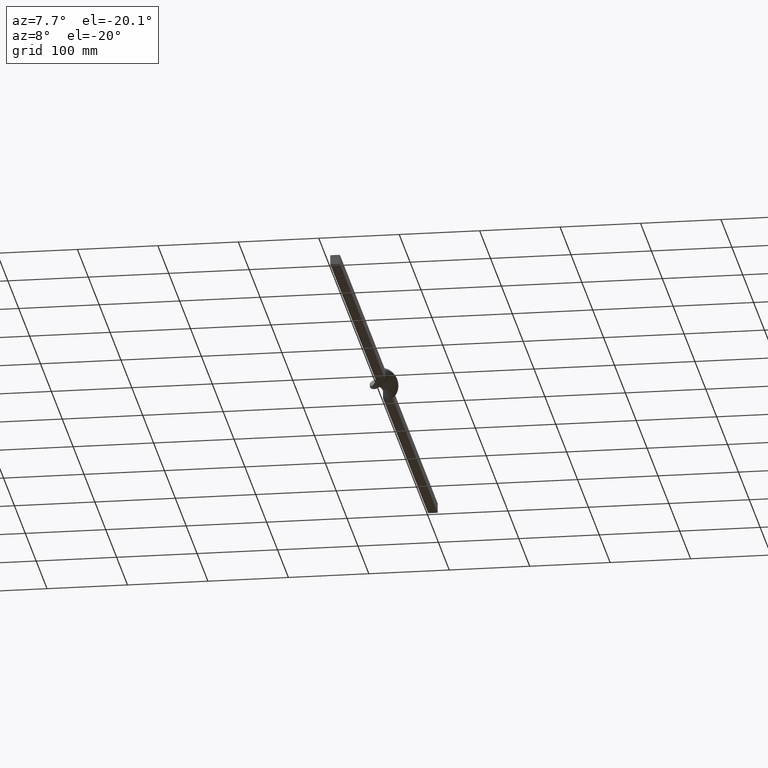
[diagram: clean part render]
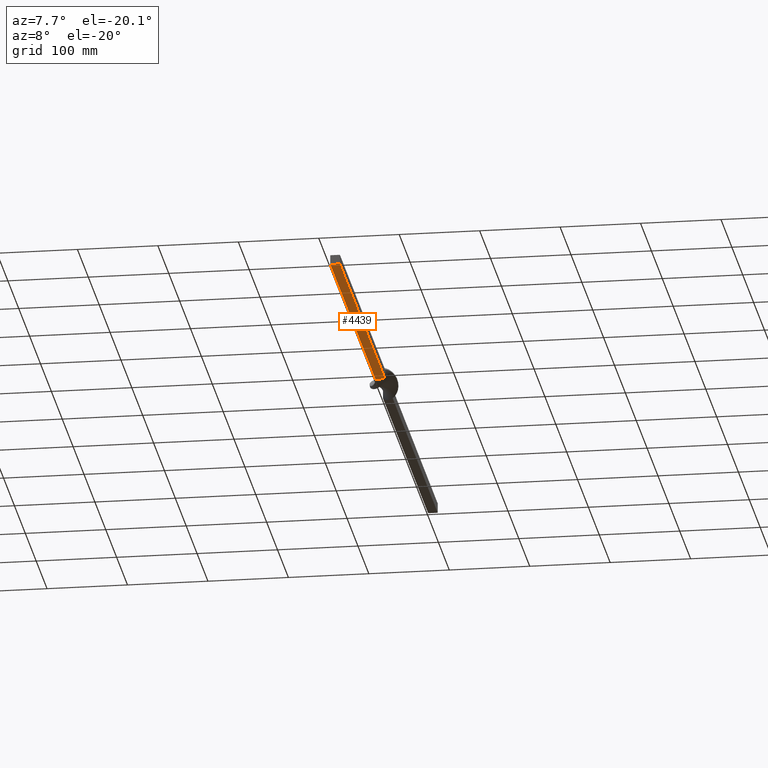
[diagram: same view with one face highlighted and labeled with its STEP entity id]
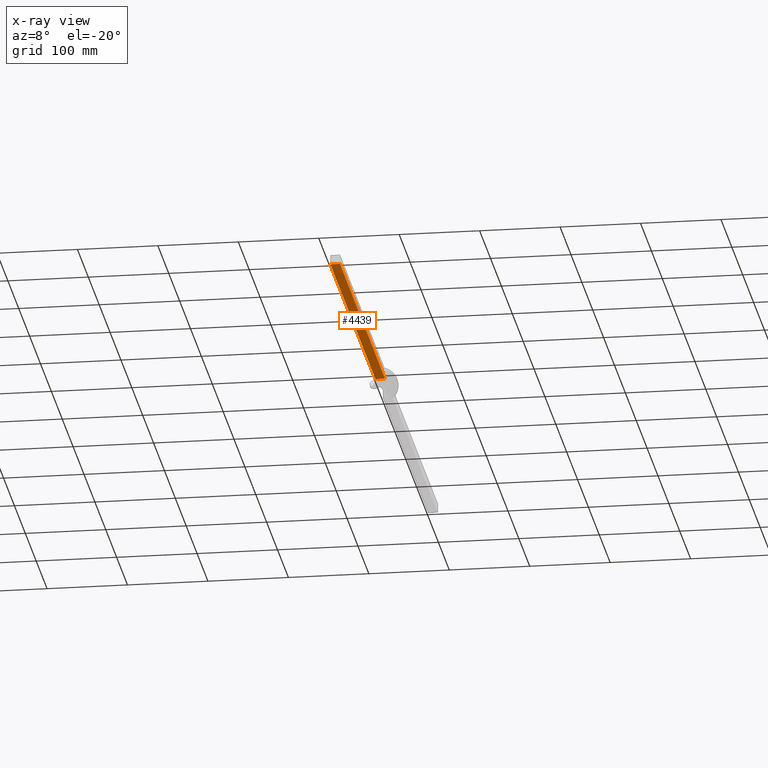
[diagram: x-ray of the same camera — body ghosted, the highlighted face saturated]
A machine part, auxiliary view. The second image highlights one B-rep face of the part: STEP entity #4439.
The next image is the same camera in x-ray: the body ghosted, the highlighted face saturated — about 0% of this face is hidden behind the body in this view.
In plain terms, the highlighted planar face has unit normal (-0, 0, -1).
Its self-contained STEP definition (entity closure, byte-faithful):
#604 = B_SPLINE_CURVE_WITH_KNOTS ( 'NONE', 3,
 ( #10279, #6742, #1488, #1528 ),
 .UNSPECIFIED., .F., .F.,
 ( 4, 4 ),
 ( 0.4669705627484773136, 0.8819705627484772936 ),
 .UNSPECIFIED. ) ;
#612 = CARTESIAN_POINT ( 'NONE',  ( 5.999985710689379914, -34.99999999999986500, -6.000014289276608181 ) ) ;
#664 = CARTESIAN_POINT ( 'NONE',  ( -6.000014289276599300, -311.6666666666670835, -5.999985710689367480 ) ) ;
#1010 = EDGE_CURVE ( 'NONE', #10582, #8151, #604, .T. ) ;
#1028 = CARTESIAN_POINT ( 'NONE',  ( 5.999985710689379914, -450.0000000000000000, -6.000014289276617951 ) ) ;
#1161 = ORIENTED_EDGE ( 'NONE', *, *, #1010, .F. ) ;
#1477 = CARTESIAN_POINT ( 'NONE',  ( 1.999985710700726171, -450.0000000000000568, -6.000004763080873715 ) ) ;
#1488 = CARTESIAN_POINT ( 'NONE',  ( 5.999985710689371032, -173.3333333333331439, -6.000014289276607293 ) ) ;
#1528 = CARTESIAN_POINT ( 'NONE',  ( 5.999985708195915812, -34.99999999533305584, -6.000014295125451369 ) ) ;
#2073 = EDGE_CURVE ( 'NONE', #5694, #2900, #7645, .T. ) ;
#2175 = VECTOR ( 'NONE', #11117, 1000.000000000000227 ) ;
#2253 = CARTESIAN_POINT ( 'NONE',  ( -6.000014289276601964, -173.3333333333331439, -5.999985710689366591 ) ) ;
#2391 = ORIENTED_EDGE ( 'NONE', *, *, #2073, .T. ) ;
#2620 = EDGE_LOOP ( 'NONE', ( #6384, #2391, #9174, #1161 ) ) ;
#2900 = VERTEX_POINT ( 'NONE', #7363 ) ;
#3747 = B_SPLINE_CURVE_WITH_KNOTS ( 'NONE', 3,
 ( #9216, #1477, #7565, #7489 ),
 .UNSPECIFIED., .F., .F.,
 ( 4, 4 ),
 ( 0.000000000000000000, 0.01200000000000000025 ),
 .UNSPECIFIED. ) ;
#3807 = FACE_OUTER_BOUND ( 'NONE', #2620, .T. ) ;
#4040 = CARTESIAN_POINT ( 'NONE',  ( -6.000014289276590418, -450.0000000000000000, -5.999985710689371921 ) ) ;
#4439 = ADVANCED_FACE ( 'NONE', ( #3807 ), #10624, .T. ) ;
#4596 = EDGE_CURVE ( 'NONE', #8151, #2900, #4788, .T. ) ;
#4788 = LINE ( 'NONE', #612, #2175 ) ;
#5041 = CARTESIAN_POINT ( 'NONE',  ( -6.000014289276590418, -450.0000000000000000, -5.999985710689371921 ) ) ;
#5049 = CARTESIAN_POINT ( 'NONE',  ( 5.999985708195915812, -34.99999999533305584, -6.000014295125451369 ) ) ;
#5694 = VERTEX_POINT ( 'NONE', #4040 ) ;
#5774 = EDGE_CURVE ( 'NONE', #10582, #5694, #3747, .T. ) ;
#6384 = ORIENTED_EDGE ( 'NONE', *, *, #5774, .T. ) ;
#6742 = CARTESIAN_POINT ( 'NONE',  ( 5.999985710689376361, -311.6666666666670835, -6.000014289276620616 ) ) ;
#6923 = AXIS2_PLACEMENT_3D ( 'NONE', #1028, #10660, #10584 ) ;
#7363 = CARTESIAN_POINT ( 'NONE',  ( -6.000014289399159040, -34.99999999541523721, -5.999985714051041974 ) ) ;
#7489 = CARTESIAN_POINT ( 'NONE',  ( -6.000014289276590418, -450.0000000000000000, -5.999985710689371921 ) ) ;
#7565 = CARTESIAN_POINT ( 'NONE',  ( -2.000014289287935121, -450.0000000000001705, -5.999995236885121486 ) ) ;
#7645 = B_SPLINE_CURVE_WITH_KNOTS ( 'NONE', 3,
 ( #5041, #664, #2253, #9431 ),
 .UNSPECIFIED., .F., .F.,
 ( 4, 4 ),
 ( 0.4669705627484773136, 0.8819705627484772936 ),
 .UNSPECIFIED. ) ;
#8151 = VERTEX_POINT ( 'NONE', #5049 ) ;
#9174 = ORIENTED_EDGE ( 'NONE', *, *, #4596, .F. ) ;
#9216 = CARTESIAN_POINT ( 'NONE',  ( 5.999985710689379026, -450.0000000000000000, -6.000014289276617951 ) ) ;
#9431 = CARTESIAN_POINT ( 'NONE',  ( -6.000014289399159040, -34.99999999541523721, -5.999985714051041974 ) ) ;
#9788 = CARTESIAN_POINT ( 'NONE',  ( 5.999985710689379026, -450.0000000000000000, -6.000014289276617951 ) ) ;
#10279 = CARTESIAN_POINT ( 'NONE',  ( 5.999985710689379026, -450.0000000000000000, -6.000014289276617951 ) ) ;
#10582 = VERTEX_POINT ( 'NONE', #9788 ) ;
#10584 = DIRECTION ( 'NONE',  ( -0.9999999999971640463, 0.000000000000000000, 2.381548937080192787E-06 ) ) ;
#10624 = PLANE ( 'NONE',  #6923 ) ;
#10660 = DIRECTION ( 'NONE',  ( -2.381548937080193211E-06, 2.299022650975940476E-17, -0.9999999999971641573 ) ) ;
#11117 = DIRECTION ( 'NONE',  ( -0.9999999999971640463, 0.000000000000000000, 2.381548937080192787E-06 ) ) ;